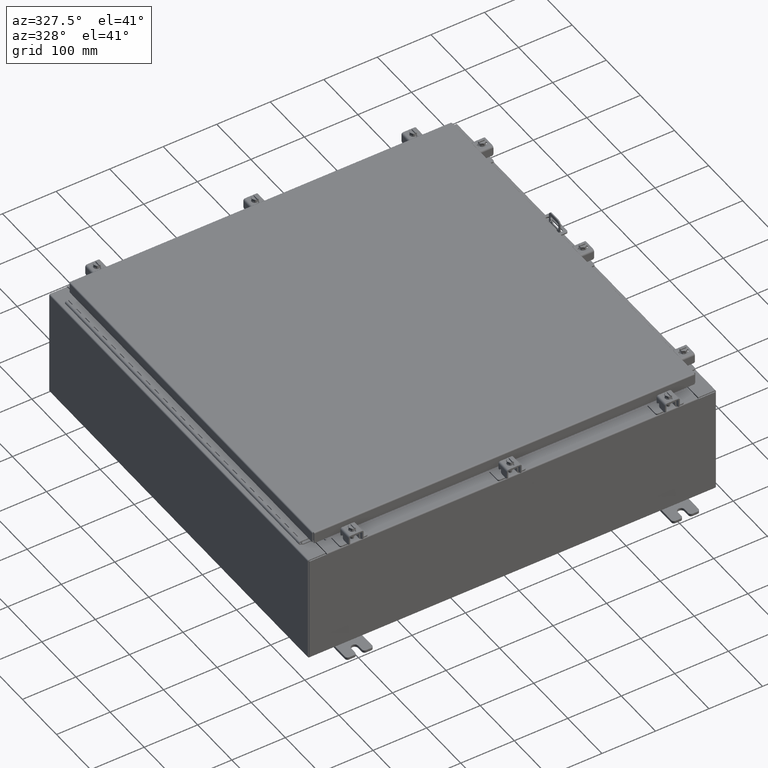
[diagram: clean part render]
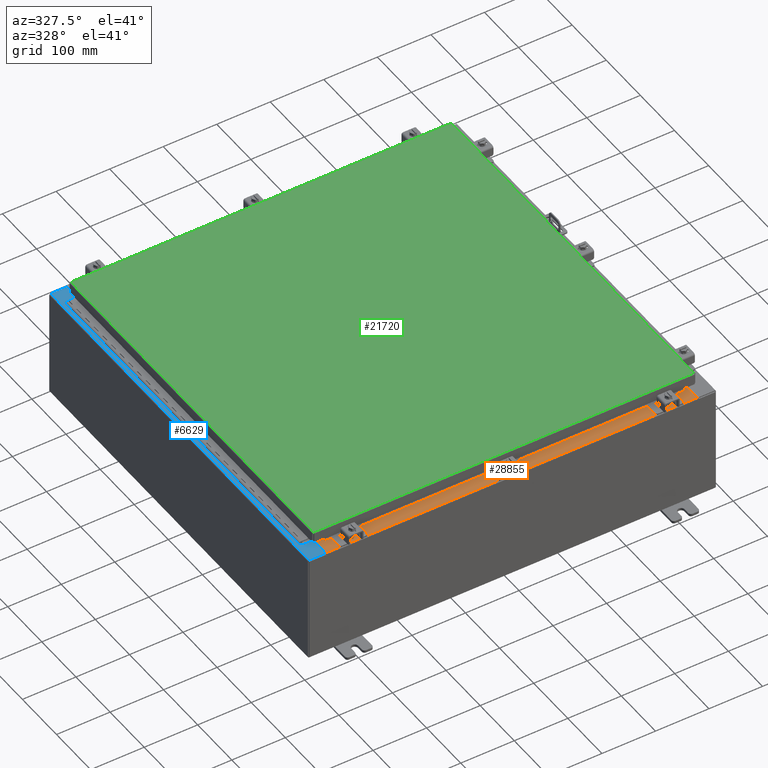
[diagram: same view with three faces highlighted in distinct colors, each labeled with its STEP entity id]
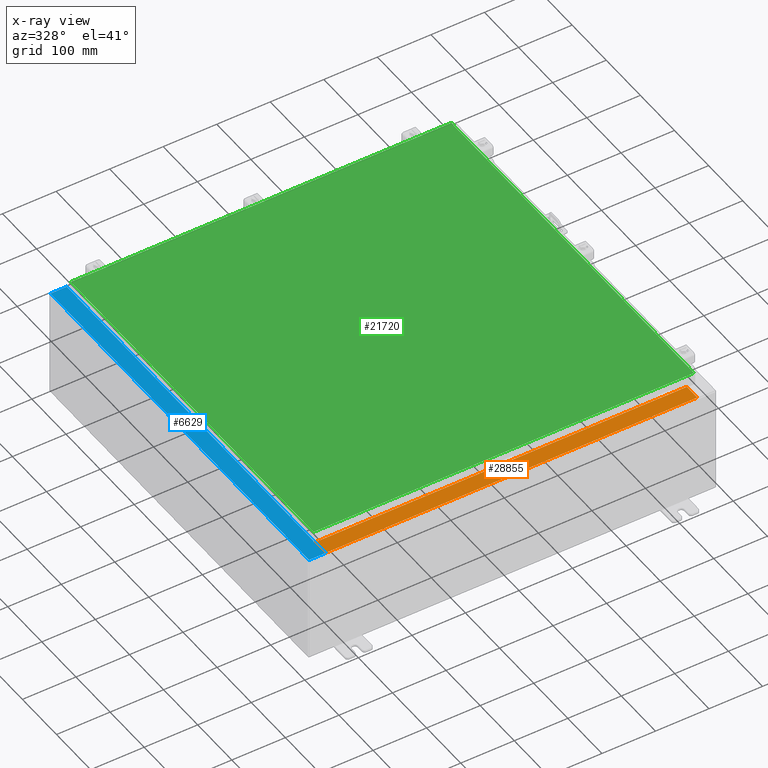
[diagram: x-ray of the same camera — body ghosted, the three highlighted faces saturated]
A machine part, auxiliary view with three faces highlighted in distinct colors.
The next image is the same camera in x-ray (body ghosted, the three faces saturated) — at least one of them is partly hidden behind the body in this view.
Their STEP definitions:

[orange] entity #28855 — the highlighted planar face has unit normal (-0, -0, 1).
#390 = VECTOR ( 'NONE', #29852, 39.37007874015748100 ) ;
#566 = VECTOR ( 'NONE', #6794, 39.37007874015748100 ) ;
#1055 = EDGE_CURVE ( 'NONE', #2230, #21476, #9431, .T. ) ;
#1626 = ORIENTED_EDGE ( 'NONE', *, *, #11338, .F. ) ;
#2230 = VERTEX_POINT ( 'NONE', #2827 ) ;
#2827 = CARTESIAN_POINT ( 'NONE',  ( 13.63720000000000400, -1.287299999999999900, 4.000000000000004400 ) ) ;
#3856 = EDGE_CURVE ( 'NONE', #21476, #35594, #20493, .T. ) ;
#5034 = DIRECTION ( 'NONE',  ( -0.0000000000000000000, 1.000000000000000000, -3.566381192773190000E-015 ) ) ;
#5580 = VECTOR ( 'NONE', #5034, 39.37007874015748100 ) ;
#5734 = DIRECTION ( 'NONE',  ( 0.0000000000000000000, -1.000000000000000000, 3.566381192773190000E-015 ) ) ;
#6794 = DIRECTION ( 'NONE',  ( -1.000000000000000000, 2.003232330437526000E-017, -7.144290108027600900E-032 ) ) ;
#9042 = CARTESIAN_POINT ( 'NONE',  ( 13.63720000000000400, -1.300299999999999800, 4.000000000000004400 ) ) ;
#9269 = CARTESIAN_POINT ( 'NONE',  ( 13.63720000000000400, -0.08769999999999965300, 4.000000000000000000 ) ) ;
#9431 = LINE ( 'NONE', #37698, #32279 ) ;
#11338 = EDGE_CURVE ( 'NONE', #23305, #2230, #15346, .T. ) ;
#15346 = LINE ( 'NONE', #9042, #390 ) ;
#15931 = EDGE_LOOP ( 'NONE', ( #22837, #17405, #1626, #17056 ) ) ;
#17056 = ORIENTED_EDGE ( 'NONE', *, *, #35219, .T. ) ;
#17376 = LINE ( 'NONE', #33504, #566 ) ;
#17405 = ORIENTED_EDGE ( 'NONE', *, *, #1055, .F. ) ;
#17582 = PLANE ( 'NONE',  #29880 ) ;
#18653 = FACE_OUTER_BOUND ( 'NONE', #15931, .T. ) ;
#19880 = CARTESIAN_POINT ( 'NONE',  ( -13.63719999999999800, -0.07469999999999973900, 4.000000000000000000 ) ) ;
#20493 = LINE ( 'NONE', #19880, #5580 ) ;
#20580 = CARTESIAN_POINT ( 'NONE',  ( 0.0000000000000000000, 1.425992975200418500E-014, 4.000000000000000000 ) ) ;
#21476 = VERTEX_POINT ( 'NONE', #36405 ) ;
#22837 = ORIENTED_EDGE ( 'NONE', *, *, #3856, .F. ) ;
#23305 = VERTEX_POINT ( 'NONE', #9269 ) ;
#23587 = DIRECTION ( 'NONE',  ( 0.0000000000000000000, 3.566381192773190000E-015, 1.000000000000000000 ) ) ;
#28855 = ADVANCED_FACE ( 'NONE', ( #18653 ), #17582, .T. ) ;
#29296 = CARTESIAN_POINT ( 'NONE',  ( -13.63719999999999800, -0.08770000000000000000, 4.000000000000000000 ) ) ;
#29852 = DIRECTION ( 'NONE',  ( -0.0000000000000000000, -1.000000000000000000, 3.566381192773190000E-015 ) ) ;
#29880 = AXIS2_PLACEMENT_3D ( 'NONE', #20580, #23587, #5734 ) ;
#32279 = VECTOR ( 'NONE', #38475, 39.37007874015748100 ) ;
#33504 = CARTESIAN_POINT ( 'NONE',  ( -1.756834753793995900E-018, -0.08770000000000000000, 4.000000000000000900 ) ) ;
#35219 = EDGE_CURVE ( 'NONE', #23305, #35594, #17376, .T. ) ;
#35594 = VERTEX_POINT ( 'NONE', #29296 ) ;
#36405 = CARTESIAN_POINT ( 'NONE',  ( -13.63719999999999800, -1.287299999999999200, 4.000000000000004400 ) ) ;
#37698 = CARTESIAN_POINT ( 'NONE',  ( 13.63720000000000400, -1.287299999999999900, 4.000000000000003600 ) ) ;
#38475 = DIRECTION ( 'NONE',  ( -1.000000000000000000, 0.0000000000000000000, 0.0000000000000000000 ) ) ;

[blue] entity #6629 — the highlighted planar face has unit normal (0, 0, -1).
#847 = CIRCLE ( 'NONE', #29734, 0.01867499999999949400 ) ;
#1816 = LINE ( 'NONE', #2075, #15825 ) ;
#2075 = CARTESIAN_POINT ( 'NONE',  ( -13.69970000000003000, 0.0000000000000000000, 7.925300000000008900 ) ) ;
#2757 = CARTESIAN_POINT ( 'NONE',  ( -14.91230000000002900, -14.92530000000000000, 7.925300000000000000 ) ) ;
#2838 = CARTESIAN_POINT ( 'NONE',  ( -13.71270000000003000, 13.59374999999999800, 7.925300000000010700 ) ) ;
#3242 = EDGE_CURVE ( 'NONE', #25391, #11911, #1816, .T. ) ;
#3406 = ORIENTED_EDGE ( 'NONE', *, *, #10204, .F. ) ;
#3658 = ORIENTED_EDGE ( 'NONE', *, *, #9258, .T. ) ;
#3868 = VERTEX_POINT ( 'NONE', #31849 ) ;
#4023 = VERTEX_POINT ( 'NONE', #32504 ) ;
#5303 = VERTEX_POINT ( 'NONE', #14707 ) ;
#5655 = DIRECTION ( 'NONE',  ( 1.000000000000000000, 0.0000000000000000000, 0.0000000000000000000 ) ) ;
#5676 = CARTESIAN_POINT ( 'NONE',  ( -5.679009539018309800E-014, -14.92530000000000000, 7.925300000000105700 ) ) ;
#6629 = ADVANCED_FACE ( 'NONE', ( #8140 ), #35426, .F. ) ;
#7506 = VECTOR ( 'NONE', #27504, 39.37007874015748100 ) ;
#7667 = DIRECTION ( 'NONE',  ( -0.0000000000000000000, 1.000000000000000000, -0.0000000000000000000 ) ) ;
#8020 = LINE ( 'NONE', #25663, #37822 ) ;
#8140 = FACE_OUTER_BOUND ( 'NONE', #20485, .T. ) ;
#8234 = VECTOR ( 'NONE', #5655, 39.37007874015748100 ) ;
#9100 = ORIENTED_EDGE ( 'NONE', *, *, #18524, .F. ) ;
#9258 = EDGE_CURVE ( 'NONE', #11911, #5303, #15973, .T. ) ;
#10204 = EDGE_CURVE ( 'NONE', #3868, #28596, #14953, .T. ) ;
#10356 = CARTESIAN_POINT ( 'NONE',  ( -5.679009539018309800E-014, 14.92530000000000000, 7.925300000000105700 ) ) ;
#10834 = ORIENTED_EDGE ( 'NONE', *, *, #17167, .F. ) ;
#11911 = VERTEX_POINT ( 'NONE', #23925 ) ;
#11982 = ORIENTED_EDGE ( 'NONE', *, *, #14149, .F. ) ;
#12041 = CARTESIAN_POINT ( 'NONE',  ( -13.75005000000002800, -13.63109999999999800, 7.925300000000007100 ) ) ;
#12163 = VERTEX_POINT ( 'NONE', #19459 ) ;
#12737 = LINE ( 'NONE', #23836, #27649 ) ;
#12779 = CARTESIAN_POINT ( 'NONE',  ( -13.75005000000002800, -13.63109999999999800, 7.925300000000010700 ) ) ;
#12926 = VECTOR ( 'NONE', #7667, 39.37007874015748100 ) ;
#13359 = DIRECTION ( 'NONE',  ( -1.000000000000000000, 0.0000000000000000000, -7.132762385546384700E-015 ) ) ;
#13568 = LINE ( 'NONE', #12779, #36390 ) ;
#13777 = DIRECTION ( 'NONE',  ( -0.0000000000000000000, -1.000000000000000000, -0.0000000000000000000 ) ) ;
#14149 = EDGE_CURVE ( 'NONE', #28596, #34494, #16171, .T. ) ;
#14502 = CARTESIAN_POINT ( 'NONE',  ( -13.69970000000003000, -13.63110000000000200, 7.925300000000008900 ) ) ;
#14509 = CARTESIAN_POINT ( 'NONE',  ( -13.75005000000002800, 13.59374999999999800, 7.925300000000010700 ) ) ;
#14656 = DIRECTION ( 'NONE',  ( 1.000000000000000000, -0.0000000000000000000, 7.132762385546384700E-015 ) ) ;
#14707 = CARTESIAN_POINT ( 'NONE',  ( -14.91230000000002900, 14.92530000000000000, 7.925300000000000000 ) ) ;
#14953 = CIRCLE ( 'NONE', #24735, 0.01867499999999949400 ) ;
#14994 = CARTESIAN_POINT ( 'NONE',  ( -13.75005000000002800, 13.61242499999999600, 7.925300000000010700 ) ) ;
#15016 = DIRECTION ( 'NONE',  ( -7.132762385546384700E-015, -0.0000000000000000000, 1.000000000000000000 ) ) ;
#15825 = VECTOR ( 'NONE', #37870, 39.37007874015748100 ) ;
#15896 = ORIENTED_EDGE ( 'NONE', *, *, #27545, .F. ) ;
#15909 = EDGE_CURVE ( 'NONE', #22476, #4023, #23525, .T. ) ;
#15973 = LINE ( 'NONE', #10356, #37823 ) ;
#16171 = LINE ( 'NONE', #14509, #8234 ) ;
#16291 = ORIENTED_EDGE ( 'NONE', *, *, #3242, .T. ) ;
#17167 = EDGE_CURVE ( 'NONE', #25391, #3868, #12737, .T. ) ;
#17596 = DIRECTION ( 'NONE',  ( 7.132762385546384700E-015, 0.0000000000000000000, -1.000000000000000000 ) ) ;
#17981 = DIRECTION ( 'NONE',  ( 1.000000000000000000, 0.0000000000000000000, 0.0000000000000000000 ) ) ;
#18465 = EDGE_CURVE ( 'NONE', #4023, #32132, #24302, .T. ) ;
#18524 = EDGE_CURVE ( 'NONE', #19594, #32132, #13568, .T. ) ;
#19459 = CARTESIAN_POINT ( 'NONE',  ( -13.71270000000003000, -13.59375000000000000, 7.925300000000010700 ) ) ;
#19503 = EDGE_CURVE ( 'NONE', #12163, #23900, #35379, .T. ) ;
#19594 = VERTEX_POINT ( 'NONE', #12041 ) ;
#19810 = CARTESIAN_POINT ( 'NONE',  ( -13.69970000000003000, 13.63109999999999800, 7.925300000000008900 ) ) ;
#20163 = EDGE_CURVE ( 'NONE', #23900, #19594, #847, .T. ) ;
#20485 = EDGE_LOOP ( 'NONE', ( #10834, #16291, #3658, #21118, #38393, #28467, #9100, #35925, #26478, #15896, #11982, #3406 ) ) ;
#20491 = VECTOR ( 'NONE', #20662, 39.37007874015748100 ) ;
#20662 = DIRECTION ( 'NONE',  ( -1.000000000000000000, 0.0000000000000000000, 0.0000000000000000000 ) ) ;
#21118 = ORIENTED_EDGE ( 'NONE', *, *, #30539, .F. ) ;
#21791 = DIRECTION ( 'NONE',  ( 1.000000000000000000, 0.0000000000000000000, -2.170286390200049500E-014 ) ) ;
#21812 = LINE ( 'NONE', #28505, #12926 ) ;
#22476 = VERTEX_POINT ( 'NONE', #2757 ) ;
#23525 = LINE ( 'NONE', #5676, #31418 ) ;
#23836 = CARTESIAN_POINT ( 'NONE',  ( -13.69970000000003000, 13.63109999999999800, 7.925300000000009800 ) ) ;
#23900 = VERTEX_POINT ( 'NONE', #30052 ) ;
#23925 = CARTESIAN_POINT ( 'NONE',  ( -13.69970000000003000, 14.92530000000000000, 7.925300000000008900 ) ) ;
#24302 = LINE ( 'NONE', #30494, #7506 ) ;
#24735 = AXIS2_PLACEMENT_3D ( 'NONE', #14994, #35804, #17981 ) ;
#25391 = VERTEX_POINT ( 'NONE', #19810 ) ;
#25663 = CARTESIAN_POINT ( 'NONE',  ( -13.71270000000003000, 13.59375000000000000, 7.925300000000010700 ) ) ;
#26478 = ORIENTED_EDGE ( 'NONE', *, *, #19503, .F. ) ;
#26653 = CARTESIAN_POINT ( 'NONE',  ( -13.71270000000003000, -13.59375000000000000, 7.925300000000010700 ) ) ;
#27136 = AXIS2_PLACEMENT_3D ( 'NONE', #29423, #17596, #38403 ) ;
#27504 = DIRECTION ( 'NONE',  ( 0.0000000000000000000, 1.000000000000000000, 0.0000000000000000000 ) ) ;
#27545 = EDGE_CURVE ( 'NONE', #34494, #12163, #8020, .T. ) ;
#27649 = VECTOR ( 'NONE', #38540, 39.37007874015748100 ) ;
#28467 = ORIENTED_EDGE ( 'NONE', *, *, #18465, .T. ) ;
#28505 = CARTESIAN_POINT ( 'NONE',  ( -14.91230000000002900, 14.92530000000000000, 7.925300000000000000 ) ) ;
#28596 = VERTEX_POINT ( 'NONE', #31268 ) ;
#29423 = CARTESIAN_POINT ( 'NONE',  ( -5.679009539018309800E-014, 0.0000000000000000000, 7.925300000000105700 ) ) ;
#29734 = AXIS2_PLACEMENT_3D ( 'NONE', #32846, #15016, #35837 ) ;
#30052 = CARTESIAN_POINT ( 'NONE',  ( -13.75005000000002800, -13.59375000000000000, 7.925300000000007100 ) ) ;
#30494 = CARTESIAN_POINT ( 'NONE',  ( -13.69970000000003000, 0.0000000000000000000, 7.925300000000008900 ) ) ;
#30539 = EDGE_CURVE ( 'NONE', #22476, #5303, #21812, .T. ) ;
#31268 = CARTESIAN_POINT ( 'NONE',  ( -13.75005000000002800, 13.59374999999999800, 7.925300000000007100 ) ) ;
#31418 = VECTOR ( 'NONE', #14656, 39.37007874015748100 ) ;
#31849 = CARTESIAN_POINT ( 'NONE',  ( -13.75005000000002800, 13.63109999999999600, 7.925300000000007100 ) ) ;
#32132 = VERTEX_POINT ( 'NONE', #14502 ) ;
#32504 = CARTESIAN_POINT ( 'NONE',  ( -13.69970000000003000, -14.92530000000000000, 7.925300000000008900 ) ) ;
#32846 = CARTESIAN_POINT ( 'NONE',  ( -13.75005000000002800, -13.61242500000000000, 7.925300000000010700 ) ) ;
#34494 = VERTEX_POINT ( 'NONE', #2838 ) ;
#35379 = LINE ( 'NONE', #26653, #20491 ) ;
#35426 = PLANE ( 'NONE',  #27136 ) ;
#35804 = DIRECTION ( 'NONE',  ( -7.132762385546384700E-015, -0.0000000000000000000, 1.000000000000000000 ) ) ;
#35837 = DIRECTION ( 'NONE',  ( 1.000000000000000000, 0.0000000000000000000, 0.0000000000000000000 ) ) ;
#35925 = ORIENTED_EDGE ( 'NONE', *, *, #20163, .F. ) ;
#36390 = VECTOR ( 'NONE', #21791, 39.37007874015748100 ) ;
#37822 = VECTOR ( 'NONE', #13777, 39.37007874015748100 ) ;
#37823 = VECTOR ( 'NONE', #13359, 39.37007874015748100 ) ;
#37870 = DIRECTION ( 'NONE',  ( 0.0000000000000000000, 1.000000000000000000, 0.0000000000000000000 ) ) ;
#38393 = ORIENTED_EDGE ( 'NONE', *, *, #15909, .T. ) ;
#38403 = DIRECTION ( 'NONE',  ( -1.000000000000000000, 0.0000000000000000000, -7.132762385546384700E-015 ) ) ;
#38540 = DIRECTION ( 'NONE',  ( -1.000000000000000000, -4.340572780400098900E-014, 2.170286390200049500E-014 ) ) ;

[green] entity #21720 — the highlighted planar face has unit normal (0, 0, -1).
#377 = VERTEX_POINT ( 'NONE', #14024 ) ;
#588 = CARTESIAN_POINT ( 'NONE',  ( 13.99030000000000100, -14.00630000000000300, -2.048885995248197400E-016 ) ) ;
#1706 = VERTEX_POINT ( 'NONE', #24731 ) ;
#3234 = FACE_OUTER_BOUND ( 'NONE', #13246, .T. ) ;
#7734 = PLANE ( 'NONE',  #15338 ) ;
#7995 = VECTOR ( 'NONE', #12448, 39.37007874015748100 ) ;
#8847 = ORIENTED_EDGE ( 'NONE', *, *, #10173, .T. ) ;
#10173 = EDGE_CURVE ( 'NONE', #377, #17355, #31718, .T. ) ;
#11064 = ORIENTED_EDGE ( 'NONE', *, *, #26120, .T. ) ;
#11850 = DIRECTION ( 'NONE',  ( -1.000000000000000000, -0.0000000000000000000, -0.0000000000000000000 ) ) ;
#12448 = DIRECTION ( 'NONE',  ( 0.0000000000000000000, 1.000000000000000000, 0.0000000000000000000 ) ) ;
#13246 = EDGE_LOOP ( 'NONE', ( #26104, #11064, #8847, #18014 ) ) ;
#14024 = CARTESIAN_POINT ( 'NONE',  ( 13.99030000000000100, 14.00629999999999400, 8.878505979408856000E-016 ) ) ;
#15338 = AXIS2_PLACEMENT_3D ( 'NONE', #34565, #16743, #37541 ) ;
#16743 = DIRECTION ( 'NONE',  ( 0.0000000000000000000, 0.0000000000000000000, -1.000000000000000000 ) ) ;
#17355 = VERTEX_POINT ( 'NONE', #30568 ) ;
#18014 = ORIENTED_EDGE ( 'NONE', *, *, #32938, .T. ) ;
#20895 = LINE ( 'NONE', #27067, #35774 ) ;
#21720 = ADVANCED_FACE ( 'NONE', ( #3234 ), #7734, .F. ) ;
#22886 = VECTOR ( 'NONE', #11850, 39.37007874015748100 ) ;
#22989 = CARTESIAN_POINT ( 'NONE',  ( -13.99029999999999600, -14.00630000000000300, 3.073328992872296200E-015 ) ) ;
#24468 = CARTESIAN_POINT ( 'NONE',  ( -13.99029999999999800, 14.00629999999999600, -2.048885995248197400E-016 ) ) ;
#24731 = CARTESIAN_POINT ( 'NONE',  ( 13.99030000000000100, -14.00630000000000300, -2.048885995248197400E-016 ) ) ;
#26104 = ORIENTED_EDGE ( 'NONE', *, *, #38007, .T. ) ;
#26120 = EDGE_CURVE ( 'NONE', #1706, #377, #31765, .T. ) ;
#27067 = CARTESIAN_POINT ( 'NONE',  ( -13.99029999999999200, -14.00630000000000300, 3.056254942911894500E-015 ) ) ;
#27455 = DIRECTION ( 'NONE',  ( 0.0000000000000000000, -1.000000000000000000, 0.0000000000000000000 ) ) ;
#30028 = DIRECTION ( 'NONE',  ( 1.000000000000000000, -0.0000000000000000000, -0.0000000000000000000 ) ) ;
#30456 = LINE ( 'NONE', #24468, #37431 ) ;
#30568 = CARTESIAN_POINT ( 'NONE',  ( -13.99029999999999800, 14.00629999999999600, -2.048885995248197400E-016 ) ) ;
#31718 = LINE ( 'NONE', #32571, #22886 ) ;
#31765 = LINE ( 'NONE', #588, #7995 ) ;
#32571 = CARTESIAN_POINT ( 'NONE',  ( 13.99030000000000100, 14.00629999999999400, 8.878505979408856000E-016 ) ) ;
#32938 = EDGE_CURVE ( 'NONE', #17355, #34932, #30456, .T. ) ;
#34565 = CARTESIAN_POINT ( 'NONE',  ( 0.0000000000000000000, 0.0000000000000000000, 0.0000000000000000000 ) ) ;
#34932 = VERTEX_POINT ( 'NONE', #22989 ) ;
#35774 = VECTOR ( 'NONE', #30028, 39.37007874015748100 ) ;
#37431 = VECTOR ( 'NONE', #27455, 39.37007874015748100 ) ;
#37541 = DIRECTION ( 'NONE',  ( -1.000000000000000000, 0.0000000000000000000, -0.0000000000000000000 ) ) ;
#38007 = EDGE_CURVE ( 'NONE', #34932, #1706, #20895, .T. ) ;